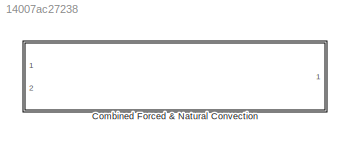
MODEL slx_14007ac27238
KIND library
CONFIG AbsTol = auto
CONFIG FixedStep = auto
CONFIG MaxStep = auto
CONFIG MinStep = auto
CONFIG RelTol = 1e-3
CONFIG SampleTimeConstraint = Unconstrained
CONFIG Solver = ode45
CONFIG SolverMode = Auto
CONFIG SolverName = ode45
CONFIG StartTime = 0.0
CONFIG StopTime = 10.0
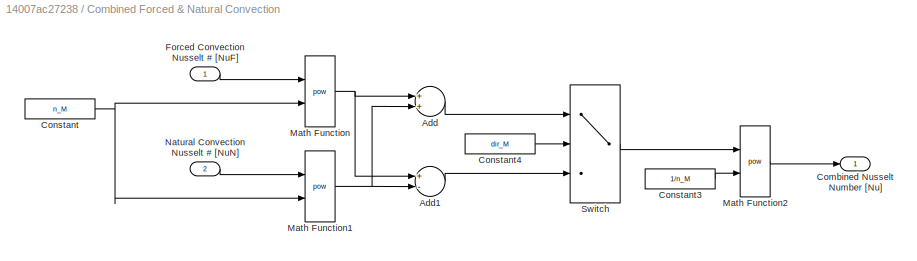
BLOCK [SubSystem] Combined Forced & Natural Convection
  Ports = [2, 1]
  RequestExecContextInheritance = off
BLOCK [Sum] Combined Forced & Natural Convection/Add
  InputSameDT = off
  OutDataTypeStr = Inherit: Inherit via internal rule
  Ports = [2, 1]
  SaturateOnIntegerOverflow = off
BLOCK [Sum] Combined Forced & Natural Convection/Add1
  InputSameDT = off
  Inputs = +-
  OutDataTypeStr = Inherit: Inherit via internal rule
  Ports = [2, 1]
  SaturateOnIntegerOverflow = off
BLOCK [Outport] Combined Forced & Natural Convection/Combined Nusselt Number [Nu]
  IconDisplay = Port number
BLOCK [Constant] Combined Forced & Natural Convection/Constant
  Value = n_M
BLOCK [Constant] Combined Forced & Natural Convection/Constant3
  Value = 1/n_M
BLOCK [Constant] Combined Forced & Natural Convection/Constant4
  Value = dir_M
BLOCK [Inport] Combined Forced & Natural Convection/Forced Convection Nusselt # [NuF] 
  IconDisplay = Port number
BLOCK [Math] Combined Forced & Natural Convection/Math Function
  Operator = pow
  Ports = [2, 1]
BLOCK [Math] Combined Forced & Natural Convection/Math Function1
  Operator = pow
  Ports = [2, 1]
BLOCK [Math] Combined Forced & Natural Convection/Math Function2
  Operator = pow
  Ports = [2, 1]
BLOCK [Inport] Combined Forced & Natural Convection/Natural Convection Nusselt # [NuN]
  IconDisplay = Port number
  Port = 2
BLOCK [Switch] Combined Forced & Natural Convection/Switch
  Criteria = u2 > Threshold
  InputSameDT = off
  SaturateOnIntegerOverflow = off
LINE Combined Forced & Natural Convection/Add1:1 -> Combined Forced & Natural Convection/Switch:3
LINE Combined Forced & Natural Convection/Add:1 -> Combined Forced & Natural Convection/Switch:1
LINE Combined Forced & Natural Convection/Constant3:1 -> Combined Forced & Natural Convection/Math Function2:2
LINE Combined Forced & Natural Convection/Constant4:1 -> Combined Forced & Natural Convection/Switch:2
NET Combined Forced & Natural Convection/Constant:1 -> Combined Forced & Natural Convection/Math Function1:2, Combined Forced & Natural Convection/Math Function:2
LINE Combined Forced & Natural Convection/Forced Convection Nusselt # [NuF] :1 -> Combined Forced & Natural Convection/Math Function:1
NET Combined Forced & Natural Convection/Math Function1:1 -> Combined Forced & Natural Convection/Add1:2, Combined Forced & Natural Convection/Add:2
LINE Combined Forced & Natural Convection/Math Function2:1 -> Combined Forced & Natural Convection/Combined Nusselt Number [Nu]:1
NET Combined Forced & Natural Convection/Math Function:1 -> Combined Forced & Natural Convection/Add1:1, Combined Forced & Natural Convection/Add:1
LINE Combined Forced & Natural Convection/Natural Convection Nusselt # [NuN]:1 -> Combined Forced & Natural Convection/Math Function1:1
LINE Combined Forced & Natural Convection/Switch:1 -> Combined Forced & Natural Convection/Math Function2:1
note: NET lines group one-source signal fan-out (src -> all destinations, sorted); 1:1 wires keep LINE
